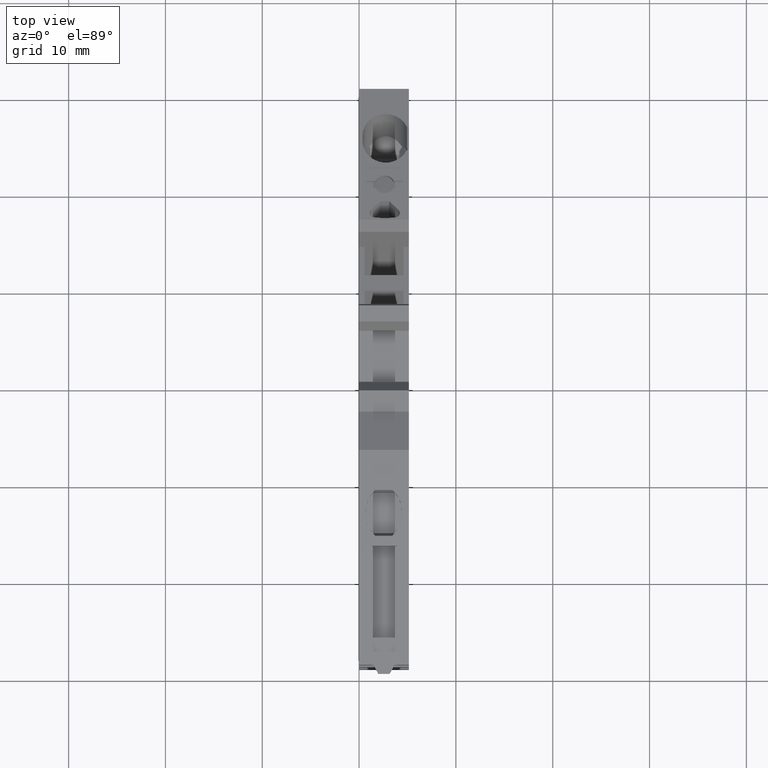
[diagram: clean part render]
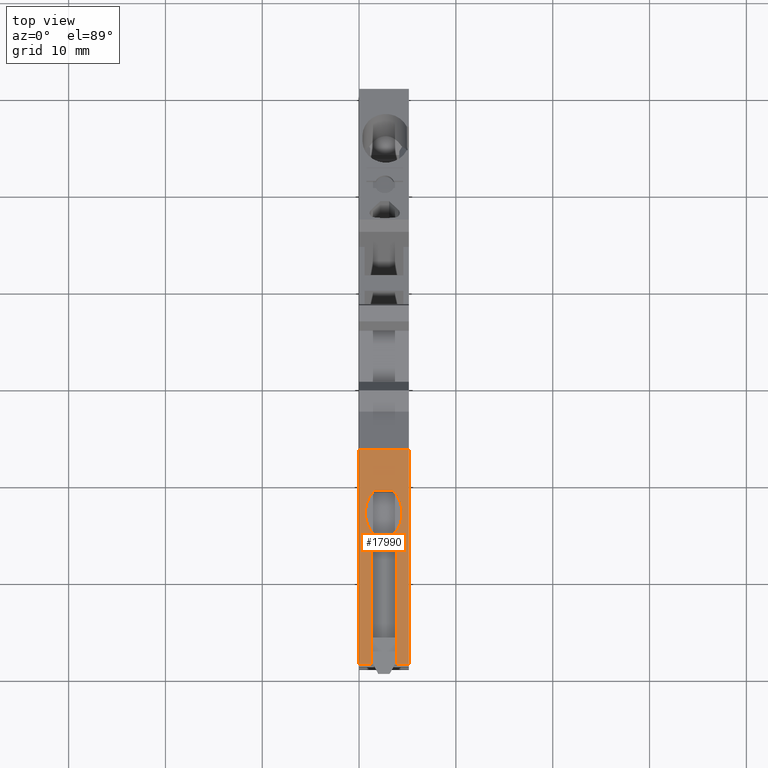
[diagram: same view with one face highlighted and labeled with its STEP entity id]
A machine part, top view. The second image highlights one B-rep face of the part: STEP entity #17990.
In plain terms, the highlighted planar face has unit normal (0, 0, -1).
Its self-contained STEP definition (entity closure, byte-faithful):
#2650=CARTESIAN_POINT('',(-0.0938929381966772,38.9107530122918,
-1.4121310698556E-7));
#2660=VERTEX_POINT('',#2650);
#2690=CARTESIAN_POINT('',(1.03543840168641E-11,38.9222816154814,
-1.4121310698556E-7));
#2700=DIRECTION('',(-0.992546151641326,-0.121869343405112,
-1.61558713389263E-27));
#2710=VECTOR('',#2700,1.);
#2720=LINE('',#2690,#2710);
#2730=CARTESIAN_POINT('',(21.9437478299359,41.6166350573421,
-1.4121310698556E-7));
#2740=VERTEX_POINT('',#2730);
#2750=EDGE_CURVE('',#2740,#2660,#2720,.T.);
#7720=CARTESIAN_POINT('',(21.9437478299359,41.6166350573421,
-5.15000014116831));
#7730=VERTEX_POINT('',#7720);
#7760=CARTESIAN_POINT('',(1.03543840168641E-11,38.9222816154814,
-5.15000014121311));
#7770=DIRECTION('',(-0.992546151641326,-0.121869343405112,
-1.61558713389263E-27));
#7780=VECTOR('',#7770,1.);
#7790=LINE('',#7760,#7780);
#7800=CARTESIAN_POINT('',(-0.0938929381966774,38.9107530122918,
-5.1500001411691));
#7810=VERTEX_POINT('',#7800);
#7820=EDGE_CURVE('',#7730,#7810,#7790,.T.);
#17140=CARTESIAN_POINT('',(21.6246055021964,41.5774493067651,
-5.15000014121311));
#17150=DIRECTION('',(0.121869343405112,-0.992546151641326,
-1.10488744479944E-27));
#17160=DIRECTION('',(0.992546151641326,0.121869343405112,
1.61558713389263E-27));
#17170=AXIS2_PLACEMENT_3D('',#17140,#17150,#17160);
#17180=PLANE('',#17170);
#17190=CARTESIAN_POINT('',(15.501556545656,40.8256334292495,
-1.20000013986164));
#17200=DIRECTION('',(0.121869343405115,-0.992546151641326,
-2.42940813085126E-13));
#17210=DIRECTION('',(0.992546151641326,0.121869343405115,
5.00782087813664E-13));
#17220=AXIS2_PLACEMENT_3D('',#17190,#17200,#17210);
#17230=CIRCLE('',#17220,3.3);
#17240=CARTESIAN_POINT('',(13.1391200759823,40.5355627046602,
-3.4857719791956));
#17250=VERTEX_POINT('',#17240);
#17260=CARTESIAN_POINT('',(17.8370653026236,41.1123978464591,
-3.51369091763428));
#17270=VERTEX_POINT('',#17260);
#17280=EDGE_CURVE('',#17250,#17270,#17230,.T.);
#17290=ORIENTED_EDGE('',*,*,#17280,.T.);
#17300=CARTESIAN_POINT('',(13.1391200759831,40.5355627046598,
-5.15000014121311));
#17310=DIRECTION('',(3.8798465562145E-13,4.76385255775314E-14,-1.));
#17320=VECTOR('',#17310,1.);
#17330=LINE('',#17300,#17320);
#17340=CARTESIAN_POINT('',(13.139120074883,40.5355627045244,
-1.71422830168275));
#17350=VERTEX_POINT('',#17340);
#17360=EDGE_CURVE('',#17350,#17250,#17330,.T.);
#17370=ORIENTED_EDGE('',*,*,#17360,.T.);
#17380=CARTESIAN_POINT('',(15.5015565456574,40.8256334292496,
-4.0000001398618));
#17390=DIRECTION('',(-0.121869343405116,0.992546151641326,
1.04272328235922E-13));
#17400=DIRECTION('',(0.992546151641326,0.121869343405116,
5.0078315086364E-13));
#17410=AXIS2_PLACEMENT_3D('',#17380,#17390,#17400);
#17420=CIRCLE('',#17410,3.3);
#17430=CARTESIAN_POINT('',(17.8370653005892,41.1123978462088,
-1.68630936100324));
#17440=VERTEX_POINT('',#17430);
#17450=EDGE_CURVE('',#17350,#17440,#17420,.T.);
#17460=ORIENTED_EDGE('',*,*,#17450,.F.);
#17470=CARTESIAN_POINT('',(17.8370653005906,41.1123978462089,
-5.15000014121311));
#17480=DIRECTION('',(4.14031137824034E-13,5.08366314578401E-14,-1.));
#17490=VECTOR('',#17480,1.);
#17500=LINE('',#17470,#17490);
#17510=EDGE_CURVE('',#17440,#17270,#17500,.T.);
#17520=ORIENTED_EDGE('',*,*,#17510,.F.);
#17530=EDGE_LOOP('',(#17520,#17460,#17370,#17290));
#17540=FACE_BOUND('',#17530,.T.);
#17550=ORIENTED_EDGE('',*,*,#7820,.T.);
#17560=CARTESIAN_POINT('',(21.9437478299359,41.6166350573421,
-5.15000014121311));
#17570=DIRECTION('',(1.47043672733197E-27,1.29373188456246E-27,-1.));
#17580=VECTOR('',#17570,1.);
#17590=LINE('',#17560,#17580);
#17600=EDGE_CURVE('',#2740,#7730,#17590,.T.);
#17610=ORIENTED_EDGE('',*,*,#17600,.T.);
#17620=ORIENTED_EDGE('',*,*,#2750,.F.);
#17630=CARTESIAN_POINT('',(-0.093892938196678,38.9107530122918,
-5.15000014121311));
#17640=DIRECTION('',(1.47043672733197E-27,1.29373188456246E-27,-1.));
#17650=VECTOR('',#17640,1.);
#17660=LINE('',#17630,#17650);
#17670=CARTESIAN_POINT('',(-0.093892938196678,38.9107530122918,
-1.23015860348282));
#17680=VERTEX_POINT('',#17670);
#17690=EDGE_CURVE('',#2660,#17680,#17660,.T.);
#17700=ORIENTED_EDGE('',*,*,#17690,.F.);
#17710=CARTESIAN_POINT('',(3.79358971761085,39.3880758632026,
-1.23015860348296));
#17720=DIRECTION('',(0.992546151641326,0.121869343405112,
-3.56619094598196E-14));
#17730=VECTOR('',#17720,1.);
#17740=LINE('',#17710,#17730);
#17750=CARTESIAN_POINT('',(12.1091958179297,40.4091039068715,
-1.23015860348326));
#17760=VERTEX_POINT('',#17750);
#17770=EDGE_CURVE('',#17680,#17760,#17740,.T.);
#17780=ORIENTED_EDGE('',*,*,#17770,.F.);
#17790=CARTESIAN_POINT('',(12.1091958179296,40.4091039068715,
-5.15000014121311));
#17800=DIRECTION('',(-3.53960909945255E-14,-4.34609349043967E-15,-1.));
#17810=VECTOR('',#17800,1.);
#17820=LINE('',#17790,#17810);
#17830=CARTESIAN_POINT('',(12.1091958179296,40.4091039068715,
-3.85000013988298));
#17840=VERTEX_POINT('',#17830);
#17850=EDGE_CURVE('',#17760,#17840,#17820,.T.);
#17860=ORIENTED_EDGE('',*,*,#17850,.F.);
#17870=CARTESIAN_POINT('',(3.79358971761085,39.3880758632026,
-3.85000013988268));
#17880=DIRECTION('',(-0.992546151641326,-0.121869343405112,
3.56619094598196E-14));
#17890=VECTOR('',#17880,1.);
#17900=LINE('',#17870,#17890);
#17910=CARTESIAN_POINT('',(-0.093892938196678,38.9107530122918,
-3.85000013988254));
#17920=VERTEX_POINT('',#17910);
#17930=EDGE_CURVE('',#17840,#17920,#17900,.T.);
#17940=ORIENTED_EDGE('',*,*,#17930,.F.);
#17950=EDGE_CURVE('',#17920,#7810,#17660,.T.);
#17960=ORIENTED_EDGE('',*,*,#17950,.F.);
#17970=EDGE_LOOP('',(#17960,#17940,#17860,#17780,#17700,#17620,#17610,
#17550));
#17980=FACE_OUTER_BOUND('',#17970,.T.);
#17990=ADVANCED_FACE('',(#17540,#17980),#17180,.F.);